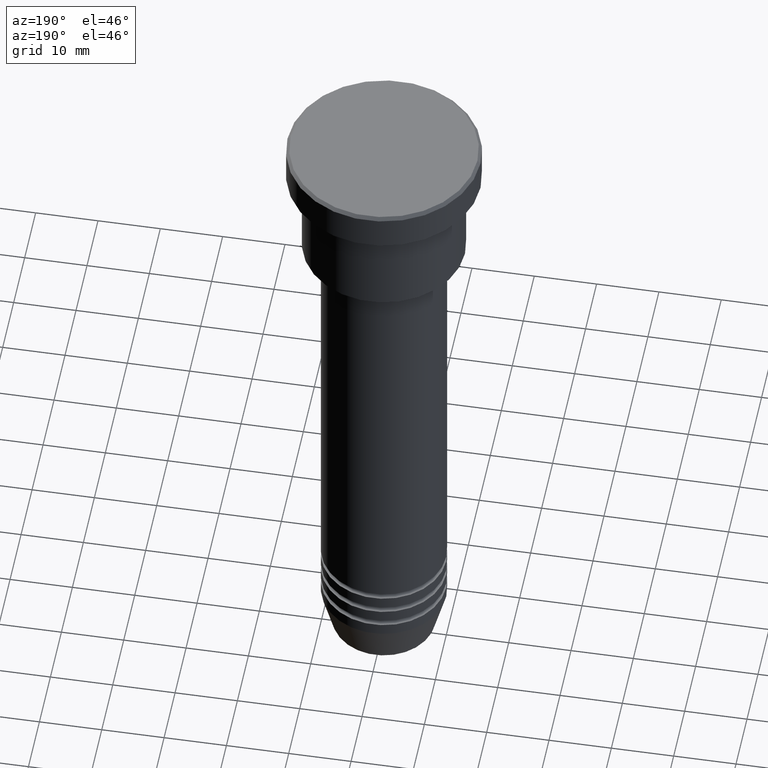
[diagram: clean part render]
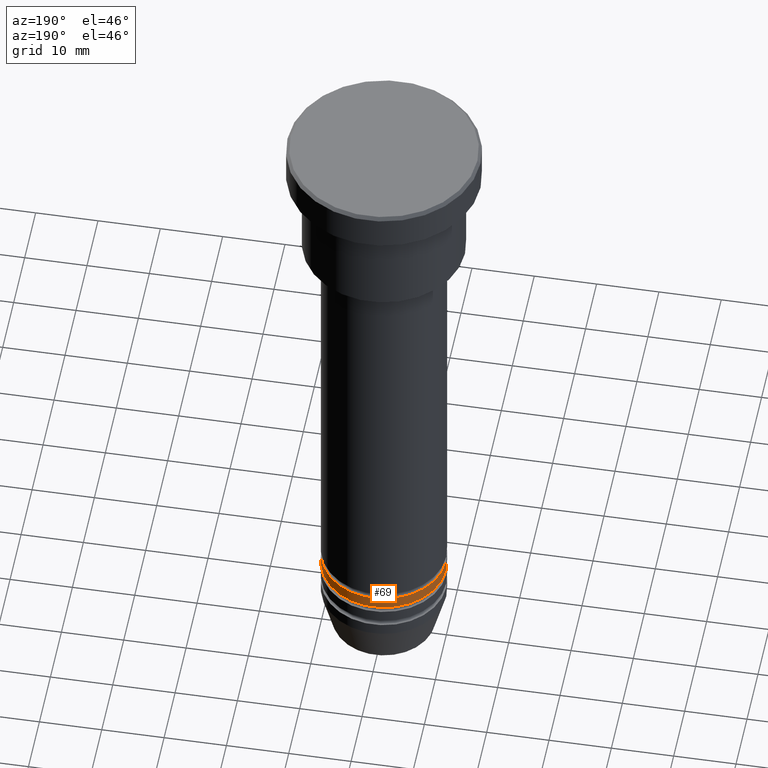
[diagram: same view with one face highlighted and labeled with its STEP entity id]
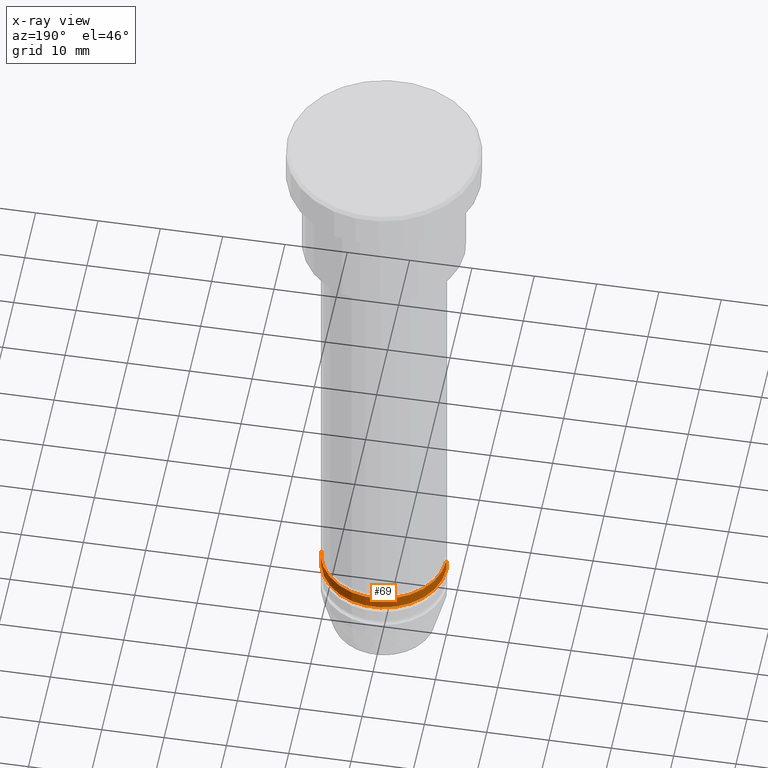
[diagram: x-ray of the same camera — body ghosted, the highlighted face saturated]
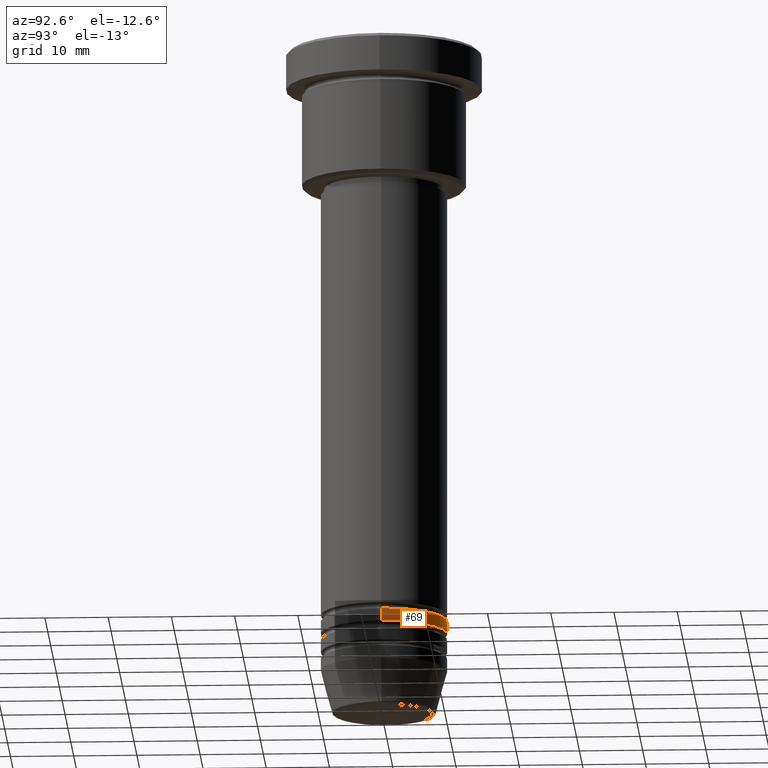
[diagram: same view with one face highlighted and labeled with its STEP entity id]
A machine part, auxiliary view. The second image highlights one B-rep face of the part: STEP entity #69.
The next image is the same camera in x-ray: the body ghosted, the highlighted face saturated — about 0% of this face is hidden behind the body in this view.
A second angle (auxiliary view) of the same face is appended — the face is thin or edge-on in the first view.
In plain terms, the highlighted cylindrical surface (partial cylindrical patch) has radius 10 mm, axis along (-0, -0, 1).
Its self-contained STEP definition (entity closure, byte-faithful):
#40 = VERTEX_POINT ( 'NONE', #500 ) ;
#56 = CYLINDRICAL_SURFACE ( 'NONE', #748, 10.00000000000000000 ) ;
#69 = ADVANCED_FACE ( 'NONE', ( #688 ), #56, .T. ) ;
#70 = CARTESIAN_POINT ( 'NONE',  ( 0.000000000000000000, 0.000000000000000000, 0.000000000000000000 ) ) ;
#81 = LINE ( 'NONE', #443, #908 ) ;
#96 = DIRECTION ( 'NONE',  ( 1.000000000000000000, 0.000000000000000000, 0.000000000000000000 ) ) ;
#155 = CARTESIAN_POINT ( 'NONE',  ( -10.00000000000000000, 1.224646799147353256E-15, -93.99999999999997158 ) ) ;
#166 = CARTESIAN_POINT ( 'NONE',  ( 0.000000000000000000, 0.000000000000000000, -93.99999999999997158 ) ) ;
#181 = DIRECTION ( 'NONE',  ( -0.000000000000000000, -0.000000000000000000, 1.000000000000000000 ) ) ;
#206 = CARTESIAN_POINT ( 'NONE',  ( 10.00000000000000000, 0.000000000000000000, -91.99999999999998579 ) ) ;
#249 = EDGE_CURVE ( 'NONE', #355, #868, #805, .T. ) ;
#285 = EDGE_CURVE ( 'NONE', #40, #721, #884, .T. ) ;
#355 = VERTEX_POINT ( 'NONE', #206 ) ;
#362 = AXIS2_PLACEMENT_3D ( 'NONE', #166, #181, #993 ) ;
#406 = EDGE_LOOP ( 'NONE', ( #984, #651, #869, #507 ) ) ;
#410 = DIRECTION ( 'NONE',  ( 1.000000000000000000, 0.000000000000000000, 0.000000000000000000 ) ) ;
#443 = CARTESIAN_POINT ( 'NONE',  ( 10.00000000000000000, 0.000000000000000000, 0.000000000000000000 ) ) ;
#500 = CARTESIAN_POINT ( 'NONE',  ( 10.00000000000000000, 0.000000000000000000, -93.99999999999997158 ) ) ;
#507 = ORIENTED_EDGE ( 'NONE', *, *, #1164, .F. ) ;
#508 = DIRECTION ( 'NONE',  ( -0.000000000000000000, -0.000000000000000000, 1.000000000000000000 ) ) ;
#517 = VECTOR ( 'NONE', #508, 1000.000000000000000 ) ;
#523 = CARTESIAN_POINT ( 'NONE',  ( -10.00000000000000000, 1.224646799147353256E-15, 0.000000000000000000 ) ) ;
#526 = CARTESIAN_POINT ( 'NONE',  ( 0.000000000000000000, 0.000000000000000000, -91.99999999999998579 ) ) ;
#611 = LINE ( 'NONE', #523, #517 ) ;
#651 = ORIENTED_EDGE ( 'NONE', *, *, #1170, .T. ) ;
#663 = CARTESIAN_POINT ( 'NONE',  ( -10.00000000000000000, 1.224646799147353256E-15, -91.99999999999998579 ) ) ;
#688 = FACE_OUTER_BOUND ( 'NONE', #406, .T. ) ;
#721 = VERTEX_POINT ( 'NONE', #155 ) ;
#748 = AXIS2_PLACEMENT_3D ( 'NONE', #70, #778, #410 ) ;
#778 = DIRECTION ( 'NONE',  ( -0.000000000000000000, -0.000000000000000000, 1.000000000000000000 ) ) ;
#805 = CIRCLE ( 'NONE', #976, 10.00000000000000000 ) ;
#868 = VERTEX_POINT ( 'NONE', #663 ) ;
#869 = ORIENTED_EDGE ( 'NONE', *, *, #249, .F. ) ;
#884 = CIRCLE ( 'NONE', #362, 10.00000000000000000 ) ;
#897 = DIRECTION ( 'NONE',  ( -0.000000000000000000, -0.000000000000000000, 1.000000000000000000 ) ) ;
#908 = VECTOR ( 'NONE', #1152, 1000.000000000000000 ) ;
#976 = AXIS2_PLACEMENT_3D ( 'NONE', #526, #897, #96 ) ;
#984 = ORIENTED_EDGE ( 'NONE', *, *, #285, .T. ) ;
#993 = DIRECTION ( 'NONE',  ( 1.000000000000000000, 0.000000000000000000, 0.000000000000000000 ) ) ;
#1152 = DIRECTION ( 'NONE',  ( -0.000000000000000000, -0.000000000000000000, 1.000000000000000000 ) ) ;
#1164 = EDGE_CURVE ( 'NONE', #40, #355, #81, .T. ) ;
#1170 = EDGE_CURVE ( 'NONE', #721, #868, #611, .T. ) ;